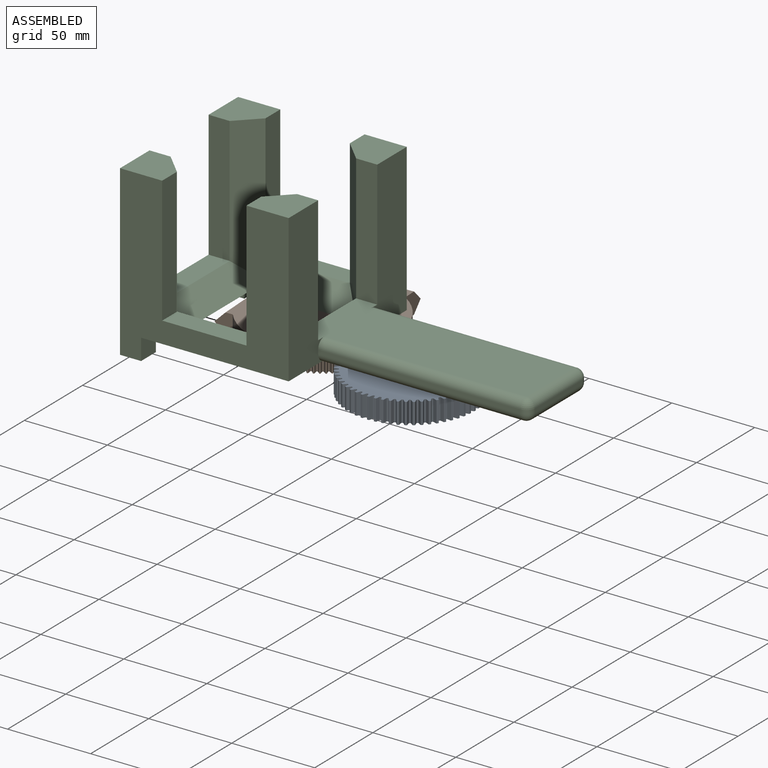
[diagram: assembled view]
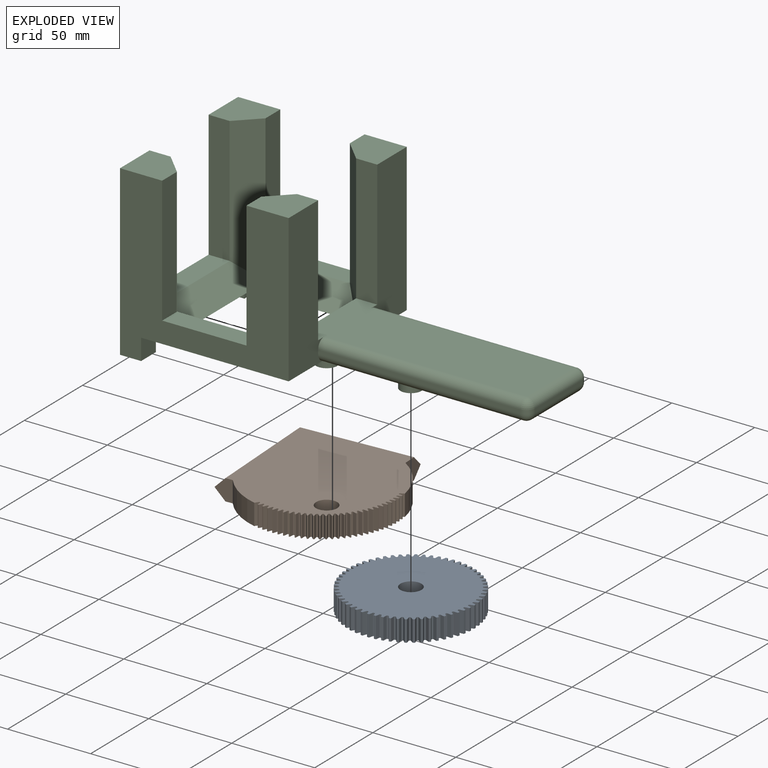
[diagram: exploded view]
GUIDED TOUR — MATED ASSEMBLY (Onshape document 09a7d28b74f1d9a2853a0c3e, AutoMate assembly 09a7d28b74f1d9a2853a0c3e_9f98ee7446e0fac3d643eff6_dcba14f437e7110d9dc58a92_default)

This assembly has 3 components, labeled P0..P2 below (a component is one placed occurrence of a part; the same part can appear more than once), held together by 3 mates. A mate is a constraint between two components; its type names the relative motion it leaves free:
  CYLINDRICAL — leaves both rotation about and translation along the listed axis free,
  PLANAR — leaves sliding in the plane through the listed point (normal = the listed direction) and rotation about that normal free.
Axis/direction vectors are unit vectors and 'through' points are millimeter coordinates, both in the assembly's world frame.

MATES
  1. PLANAR "Planar 1": P1 <-> P2, direction (0.000, 0.000, 1.000) through (-133.79, 98.52, -1.93) mm
  2. CYLINDRICAL "Cylindrical 2": P0 <-> P2, axis (0.000, 0.000, -1.000) through (-61.43, 70.53, -17.31) mm
  3. CYLINDRICAL "Cylindrical 1": P1 <-> P2, axis (0.000, 0.000, -1.000) through (-112.23, 70.53, -14.63) mm

ASSEMBLY ORDER
  1. P2 — the base component [order verified]
  2. P1 [order verified]
  3. P0 [order verified]
Order-tag legend:
  [order verified] — this step's position reverses a verified removal order: the component was checked to insert without passing through the ones already placed.

Of the 3 components, 1 carries the full construction recipe — the FeatureScript program that regenerates the part's solid from scratch; the rest are supplied as boundary geometry only.
Each toured component is shown spotlighted twice — in the assembled view, then in the exploded view, where a leader line traces a displaced component back to its assembled socket (saturated green if recipe-attached, orange if geometry-only; every other component desaturated gray) — followed by its recipe or geometry summary and the mates that hold it.
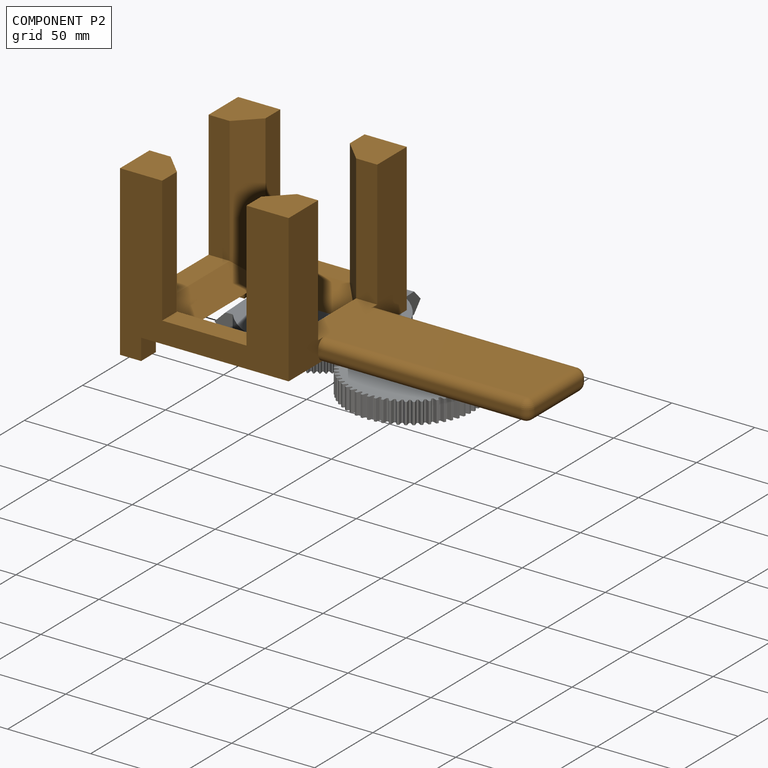
[diagram: component P2 — assembled]
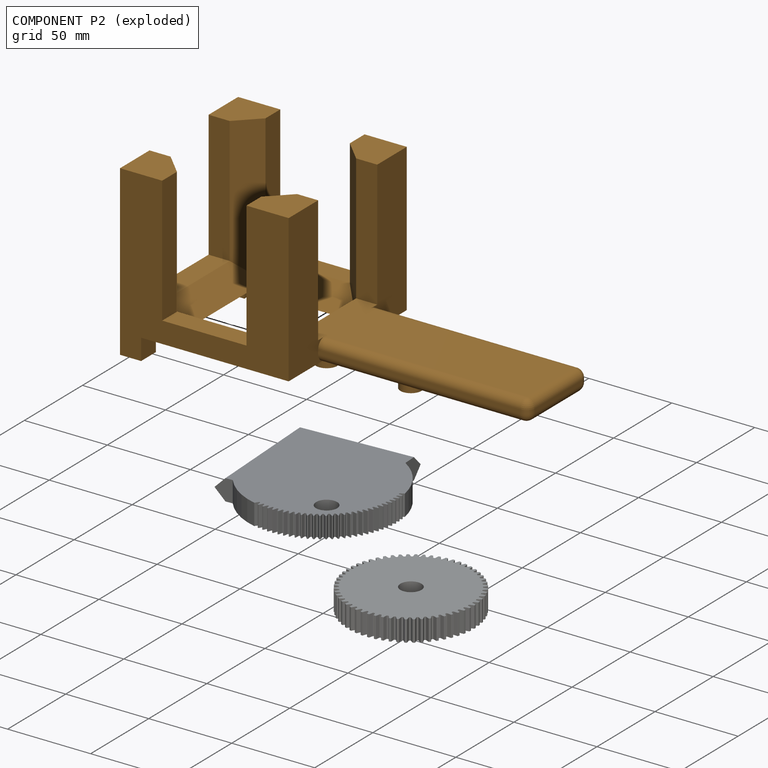
[diagram: component P2 — exploded]
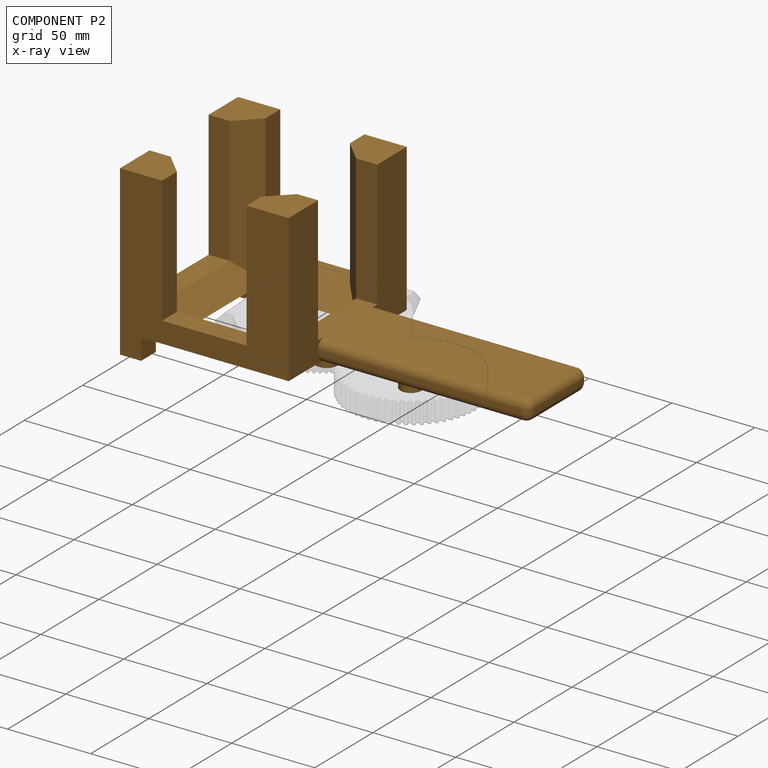
[diagram: component P2 — x-ray view]
COMPONENT P2 — geometry summary (no construction recipe available for this part):
  bounding box: 228.6 x 101.6 x 101.6 mm
  B-rep topology: 1 solid, 61 faces, 303 edges
  volume: 336505 mm^3 (14% of its bounding box)
  symmetry: mirror-symmetric across its y mid-plane
Held by: PLANAR mate "Planar 1" to P1; CYLINDRICAL mate "Cylindrical 2" to P0; CYLINDRICAL mate "Cylindrical 1" to P1.
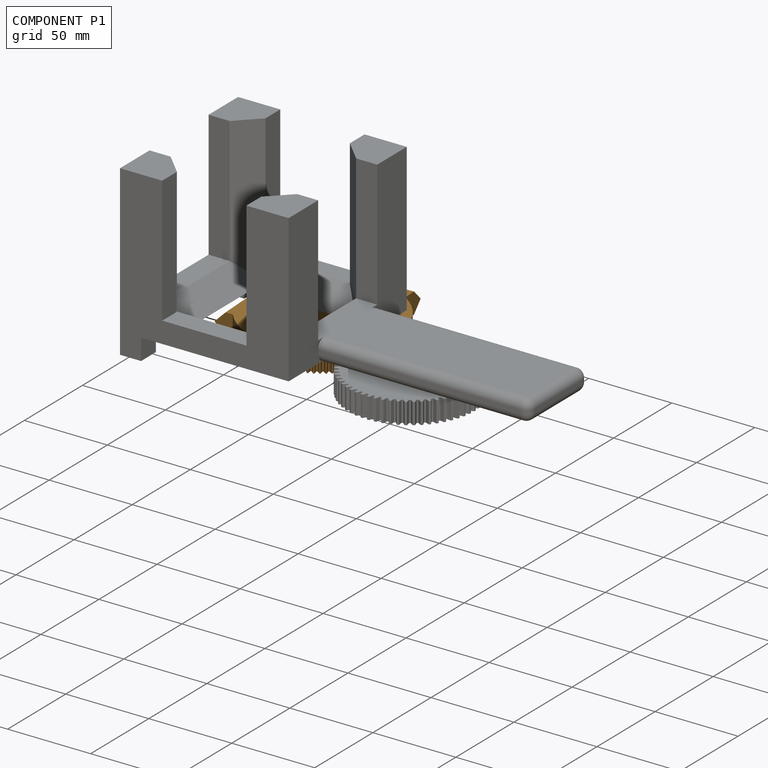
[diagram: component P1 — assembled]
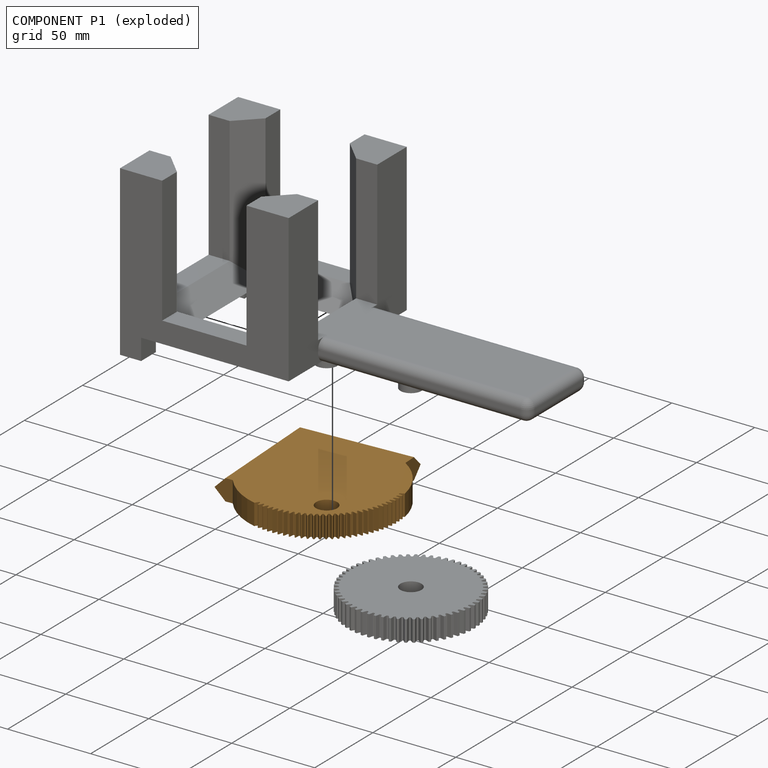
[diagram: component P1 — exploded]
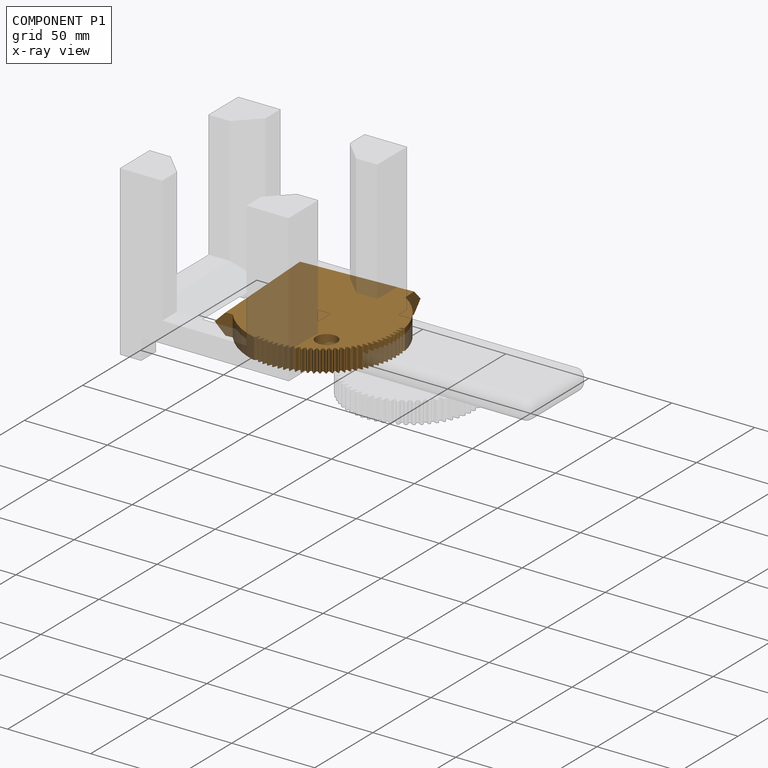
[diagram: component P1 — x-ray view]
COMPONENT P1 — geometry summary (no construction recipe available for this part):
  bounding box: 95.2 x 91.5 x 12.7 mm
  B-rep topology: 1 solid, 186 faces, 1098 edges
  volume: 85006 mm^3 (77% of its bounding box)
  symmetry: mirror-symmetric across its z mid-plane
Held by: PLANAR mate "Planar 1" to P2; CYLINDRICAL mate "Cylindrical 1" to P2.
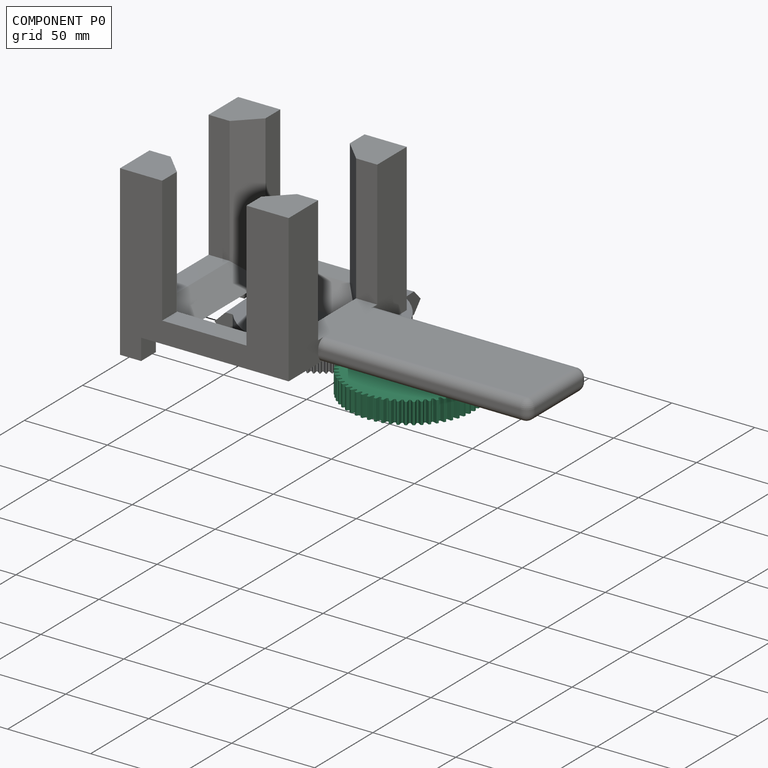
[diagram: component P0 — assembled]
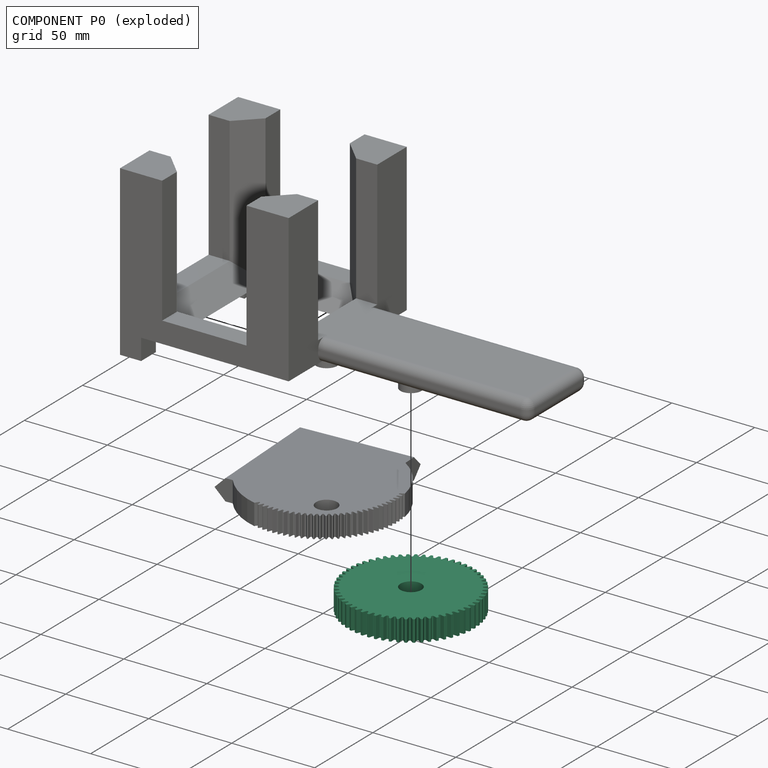
[diagram: component P0 — exploded]
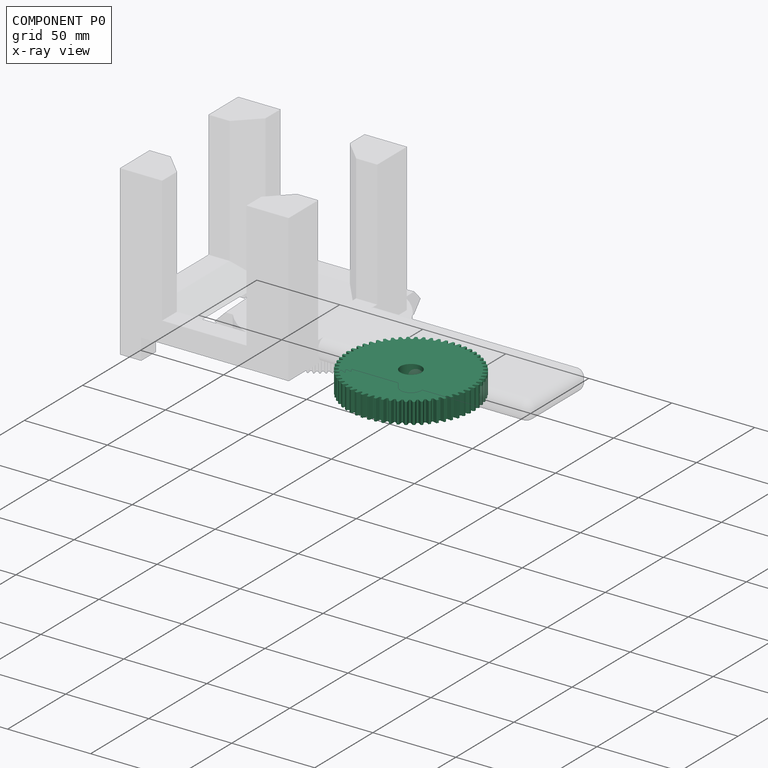
[diagram: component P0 — x-ray view]
COMPONENT P0 — recipe-attached (CADFS 00155429, mesh-verified: the recipe's output STEP matches this component's geometry to below the mesh-comparison resolution (tessellation chordal tolerance ~0.163 mm)).
Held by: CYLINDRICAL mate "Cylindrical 2" to P2.
Construction recipe (FeatureScript — the CAD program that rebuilds this solid; sketch coordinates are in the units given by the * unit suffixes, e.g. mm):

FeatureScript 1511;
import(path : "onshape/std/geometry.fs", version : "1511.0");
import(path : "onshape/std/common.fs", version : "1511.0");
const mm = millimeter;
const VERTEX = EntityType.VERTEX;
const EDGE = EntityType.EDGE;
const FACE = EntityType.FACE;
const BODY = EntityType.BODY;
function v(x, y){return vector(x, y);}
function OD(order){return orderDisambiguation(order);}
function OSD(set){return originalSetDisambiguation(set);}
function TD(topology){return topologyDisambiguation(topology);}
function TDD(query){return trueDependencyDisambiguation(query);}
function sQuery(a, b, c) {return sketchEntityQuery(a, b, c);}

annotation { "Feature Type Name" : "Feature", "Feature Type Description" : "" }
export const myFeature = defineFeature(function(context is Context, id is Id, definition is map)
    precondition{}
    {
        {
            var Q0;
            Q0=qCreatedBy(makeId("Top.planeOp"),FACE);
            var sketch = newSketch(context, id + "F0", { "sketchPlane" : qUnion([Q0])});
            skCircle(sketch, "E0", {"center": v(0, 0) * mm, "radius": 38.1 * mm});
            skSolve(sketch);
        }
        {
            var Q0;
            Q0=makeQuery(id+"F0.imprint","IMPRINT",FACE,{"disambiguationData":[TD([[makeQuery(id+"F0.imprint","IMPRINT",EDGE,{"derivedFrom":sQuery(id+"F0.wireOp",EDGE,"E0")}),1.0]])]});
            extrude(context, id + "F1", {"entities" : qUnion([Q0]), "depth" : 12.7 * mm});
        }
        {
            var Q0;
            Q0=makeQuery(id+"F1.opExtrude","CAP_FACE",FACE,{"disambiguationData":[OSD([sQuery(id+"F0.wireOp",EDGE,"E0")])],"isStart":false});
            var sketch = newSketch(context, id + "F2", { "sketchPlane" : qUnion([Q0])});
            skLineSegment(sketch, "E1", {"start": v(0, 0) * mm, "end": v(0, 38.1) * mm, "construction": true});
            skLineSegment(sketch, "E2", {"start": v(1.4, 38.07) * mm, "end": v(0.48, 35.54) * mm});
            skLineSegment(sketch, "E3.MirrorCS", {"start": v(-1.4, 38.07) * mm, "end": v(-0.48, 35.54) * mm});
            skLineSegment(sketch, "E4", {"start": v(-0.48, 35.54) * mm, "end": v(0.48, 35.54) * mm});
            skSolve(sketch);
        }
        {
            var Q0;
            {var subQ0=sQuery(id+"F2.wireOp",EDGE,"E2");Q0=makeQuery(id+"F2.imprint","IMPRINT",FACE,{"disambiguationData":[TD([[makeQuery(id+"F2.imprint","IMPRINT",EDGE,{"derivedFrom":subQ0}),-1.0]])]});}
            extrude(context, id + "F3", {"entities" : qUnion([Q0]), "operationType" : NewBodyOperationType.REMOVE, "oppositeDirection" : true, "depth" : 25.4 * mm});
        }
        {
            var Q0;
            Q0=makeQuery(id+"F3.boolean.opBoolean","COPY",EDGE,{"derivedFrom":makeQuery(id+"F3.opExtrude","SWEPT_EDGE",EDGE,{"disambiguationData":[OSD([sQuery(id+"F2.wireOp",EDGE,"E3.MirrorCS"),sQuery(id+"F2.wireOp",EDGE,"E4")])]})});
            var Q1;
            Q1=makeQuery(id+"F3.boolean.opBoolean","COPY",EDGE,{"derivedFrom":makeQuery(id+"F3.opExtrude","SWEPT_EDGE",EDGE,{"disambiguationData":[OSD([sQuery(id+"F2.wireOp",EDGE,"E2"),sQuery(id+"F2.wireOp",EDGE,"E4")])]})});
            fillet(context, id + "F4", {"entities" : qUnion([Q0, Q1]), "radius" : 0.25 * mm, "tangentPropagation" : true, "allowEdgeOverflow" : false});
        }
        {
            var Q0;
            Q0=makeQuery(id+"F3.boolean.opBoolean","COPY",FACE,{"derivedFrom":makeQuery(id+"F3.opExtrude","SWEPT_FACE",FACE,{"disambiguationData":[OSD([sQuery(id+"F2.wireOp",EDGE,"E3.MirrorCS")])]})});
            var Q1;
            Q1=makeQuery(id+"F4.opFillet","BLEND_FACE",FACE,{"disambiguationData":[OSD([sQuery(id+"F2.wireOp",EDGE,"E3.MirrorCS"),sQuery(id+"F2.wireOp",EDGE,"E4")])]});
            var Q2;
            Q2=makeQuery(id+"F3.boolean.opBoolean","COPY",FACE,{"derivedFrom":makeQuery(id+"F3.opExtrude","SWEPT_FACE",FACE,{"disambiguationData":[OSD([sQuery(id+"F2.wireOp",EDGE,"E4")])]})});
            var Q3;
            Q3=makeQuery(id+"F4.opFillet","BLEND_FACE",FACE,{"disambiguationData":[OSD([sQuery(id+"F2.wireOp",EDGE,"E2"),sQuery(id+"F2.wireOp",EDGE,"E4")])]});
            var Q4;
            Q4=makeQuery(id+"F3.boolean.opBoolean","COPY",FACE,{"derivedFrom":makeQuery(id+"F3.opExtrude","SWEPT_FACE",FACE,{"disambiguationData":[OSD([sQuery(id+"F2.wireOp",EDGE,"E2")])]})});
            var Q5;
            Q5=makeQuery(id+"F1.opExtrude","SWEPT_FACE",FACE,{"disambiguationData":[OSD([sQuery(id+"F0.wireOp",EDGE,"E0")])]});
            circularPattern(context, id + "F5", {"patternType" : PatternType.FACE, "faces" : qUnion([Q0, Q1, Q2, Q3, Q4]), "axis" : qUnion([Q5]), "angle" : 6 * degree, "instanceCount" : 60});
        }
        {
            var Q0;
            Q0=makeQuery(id+"F1.opExtrude","CAP_FACE",FACE,{"disambiguationData":[OSD([sQuery(id+"F0.wireOp",EDGE,"E0")])],"isStart":false});
            var sketch = newSketch(context, id + "F6", { "sketchPlane" : qUnion([Q0])});
            skCircle(sketch, "E5", {"center": v(0, 0) * mm, "radius": 6.35 * mm});
            skSolve(sketch);
        }
        {
            var Q0;
            Q0=sQuery(id+"F6.wireOp",VERTEX,"E5.center");
            var Q1;
            Q1=makeQuery(id+"F1.opExtrude","SWEPT_BODY",BODY,{"disambiguationData":[OSD([sQuery(id+"F0.wireOp",EDGE,"E0")])]});
            hole(context, id + "F7", {"style" : HoleStyle.SIMPLE, "endStyle" : HoleEndStyle.BLIND, "holeDiameter" : 12.7 * mm, "holeDepth" : 25.4 * mm, "locations" : qUnion([Q0]), "scope" : qUnion([Q1])});
        }
    });
PROVENANCE & LICENSES
Assembly (occurrences, transforms, mates, per-part STEP geometry): AutoMate dataset, Zenodo record 7776208, CC0.
Construction recipes: CADFS (HuggingFace VladPyatov/CADFS, CC-BY-4.0, layered over the ABC dataset), FeatureScript reconstruction programs keyed by ABC model id.
Join: ABC meta listings map ABC model id -> Onshape documentId; within a shared document, parts are matched by geometric signature (bounding-box dims + volume at 0.1% relative tolerance, exact B-rep face/solid counts).
Verification: 1 of this assembly's 3 components carries a recipe attachment, and every attachment is mesh-verified: the CADFS STEP and the AutoMate member STEP were compared as meshes in their shared local frame (symmetric sampled-point-to-mesh distance); worst across the 1 attachment: below the mesh-comparison resolution (tessellation chordal tolerance ~0.163 mm) on a 108 mm part.
Renders: orthographic iso camera (az 35 / el 25); the floor grid conveys scale (grid pitch printed in each image; no ruler). In the exploded view each component is displaced by its stored offset vector: the offsets alone carry the explosion direction (mate normal/axis signs are not orientation cues and do not encode it), and separation distances are assigned per mate-chain, not proportionally to assembly-order depth.
